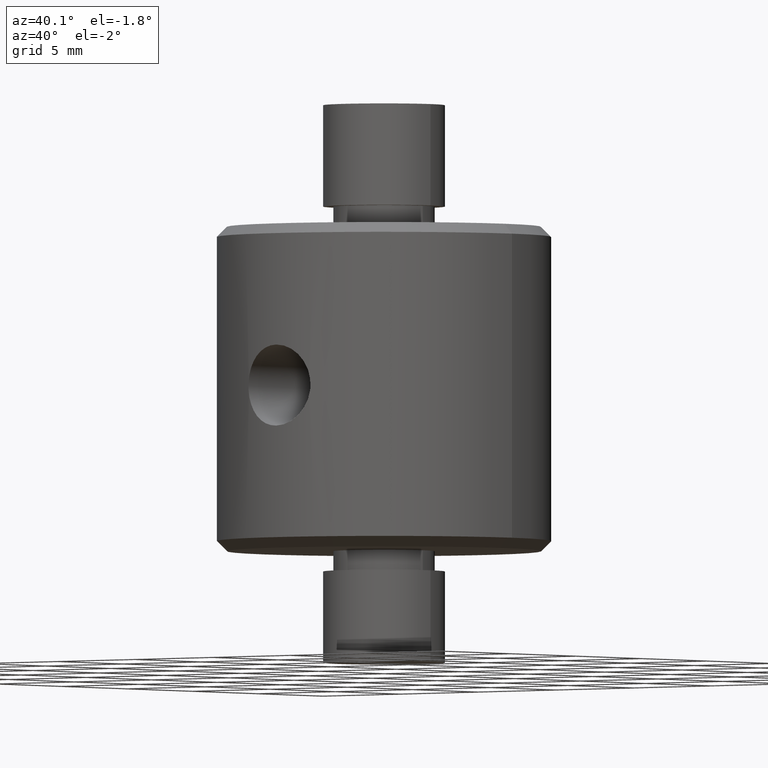
[diagram: clean part render]
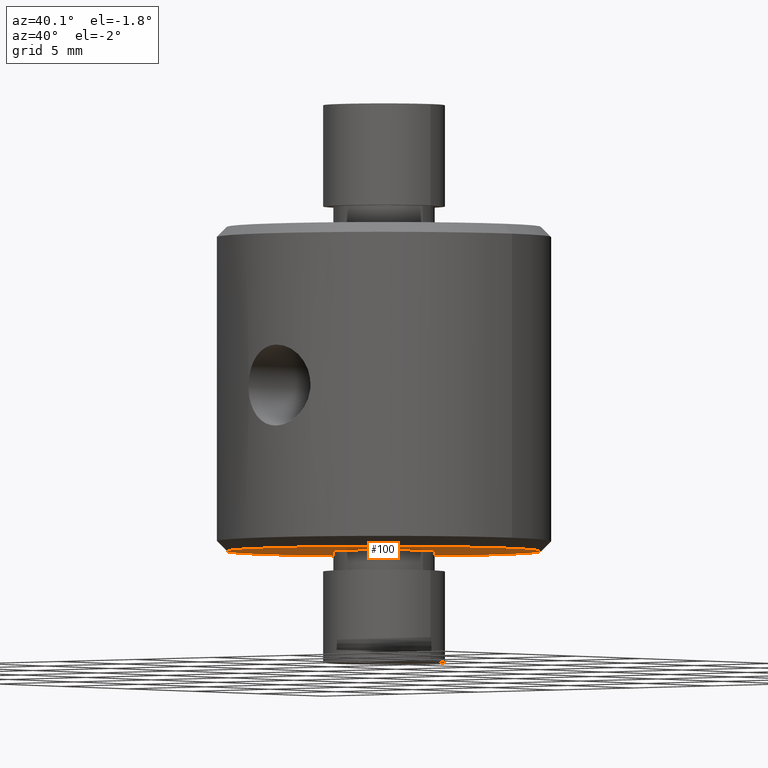
[diagram: same view with one face highlighted and labeled with its STEP entity id]
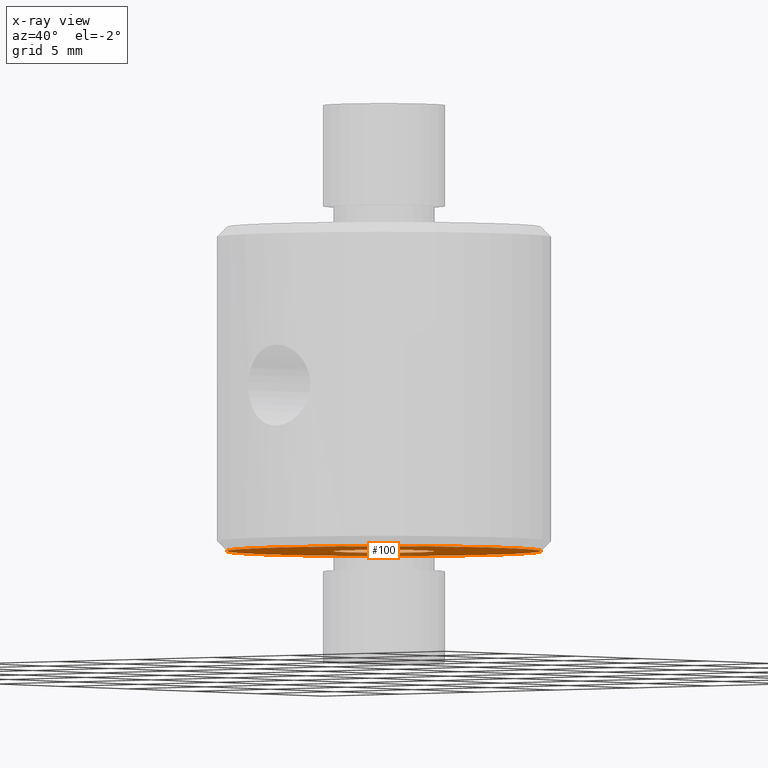
[diagram: x-ray of the same camera — body ghosted, the highlighted face saturated]
A machine part, auxiliary view. The second image highlights one B-rep face of the part: STEP entity #100.
The next image is the same camera in x-ray: the body ghosted, the highlighted face saturated — about 16% of this face is hidden behind the body in this view.
In plain terms, the highlighted planar face has unit normal (0, 0, -1).
Its self-contained STEP definition (entity closure, byte-faithful):
#4 = CIRCLE ( 'NONE', #578, 7.749999999999991100 ) ;
#8 = CARTESIAN_POINT ( 'NONE',  ( -7.749999999999991100, 9.797174393178819700E-016, -8.000000000000000000 ) ) ;
#19 = EDGE_CURVE ( 'NONE', #66, #226, #692, .T. ) ;
#31 = AXIS2_PLACEMENT_3D ( 'NONE', #237, #298, #700 ) ;
#39 = DIRECTION ( 'NONE',  ( 0.0000000000000000000, 0.0000000000000000000, -1.000000000000000000 ) ) ;
#66 = VERTEX_POINT ( 'NONE', #8 ) ;
#97 = FACE_BOUND ( 'NONE', #184, .T. ) ;
#100 = ADVANCED_FACE ( 'NONE', ( #248, #97 ), #277, .T. ) ;
#165 = CARTESIAN_POINT ( 'NONE',  ( 0.0000000000000000000, 0.0000000000000000000, -8.000000000000000000 ) ) ;
#184 = EDGE_LOOP ( 'NONE', ( #297, #748 ) ) ;
#207 = DIRECTION ( 'NONE',  ( 0.0000000000000000000, 0.0000000000000000000, -1.000000000000000000 ) ) ;
#226 = VERTEX_POINT ( 'NONE', #668 ) ;
#237 = CARTESIAN_POINT ( 'NONE',  ( 0.0000000000000000000, 0.0000000000000000000, -8.000000000000000000 ) ) ;
#248 = FACE_OUTER_BOUND ( 'NONE', #661, .T. ) ;
#276 = CARTESIAN_POINT ( 'NONE',  ( 0.0000000000000000000, 0.0000000000000000000, -8.000000000000000000 ) ) ;
#277 = PLANE ( 'NONE',  #31 ) ;
#297 = ORIENTED_EDGE ( 'NONE', *, *, #634, .F. ) ;
#298 = DIRECTION ( 'NONE',  ( 0.0000000000000000000, 0.0000000000000000000, -1.000000000000000000 ) ) ;
#326 = DIRECTION ( 'NONE',  ( -1.000000000000000000, 0.0000000000000000000, 0.0000000000000000000 ) ) ;
#332 = AXIS2_PLACEMENT_3D ( 'NONE', #389, #39, #326 ) ;
#335 = DIRECTION ( 'NONE',  ( -1.000000000000000000, 0.0000000000000000000, 0.0000000000000000000 ) ) ;
#340 = ORIENTED_EDGE ( 'NONE', *, *, #19, .T. ) ;
#359 = VERTEX_POINT ( 'NONE', #376 ) ;
#376 = CARTESIAN_POINT ( 'NONE',  ( -2.500000000000000000, 3.061616997868383100E-016, -8.000000000000000000 ) ) ;
#389 = CARTESIAN_POINT ( 'NONE',  ( 0.0000000000000000000, 0.0000000000000000000, -8.000000000000000000 ) ) ;
#391 = CIRCLE ( 'NONE', #674, 2.500000000000000000 ) ;
#424 = EDGE_CURVE ( 'NONE', #226, #66, #4, .T. ) ;
#443 = DIRECTION ( 'NONE',  ( -1.000000000000000000, 0.0000000000000000000, 0.0000000000000000000 ) ) ;
#462 = AXIS2_PLACEMENT_3D ( 'NONE', #165, #207, #443 ) ;
#529 = CIRCLE ( 'NONE', #462, 2.500000000000000000 ) ;
#557 = DIRECTION ( 'NONE',  ( 0.0000000000000000000, 0.0000000000000000000, -1.000000000000000000 ) ) ;
#560 = DIRECTION ( 'NONE',  ( -1.000000000000000000, 0.0000000000000000000, 0.0000000000000000000 ) ) ;
#578 = AXIS2_PLACEMENT_3D ( 'NONE', #276, #698, #335 ) ;
#634 = EDGE_CURVE ( 'NONE', #635, #359, #391, .T. ) ;
#635 = VERTEX_POINT ( 'NONE', #665 ) ;
#661 = EDGE_LOOP ( 'NONE', ( #694, #340 ) ) ;
#665 = CARTESIAN_POINT ( 'NONE',  ( 2.500000000000000000, 0.0000000000000000000, -8.000000000000000000 ) ) ;
#668 = CARTESIAN_POINT ( 'NONE',  ( 7.749999999999991100, 0.0000000000000000000, -8.000000000000000000 ) ) ;
#674 = AXIS2_PLACEMENT_3D ( 'NONE', #729, #557, #560 ) ;
#676 = EDGE_CURVE ( 'NONE', #359, #635, #529, .T. ) ;
#692 = CIRCLE ( 'NONE', #332, 7.749999999999991100 ) ;
#694 = ORIENTED_EDGE ( 'NONE', *, *, #424, .T. ) ;
#698 = DIRECTION ( 'NONE',  ( 0.0000000000000000000, 0.0000000000000000000, -1.000000000000000000 ) ) ;
#700 = DIRECTION ( 'NONE',  ( -1.000000000000000000, 0.0000000000000000000, -0.0000000000000000000 ) ) ;
#729 = CARTESIAN_POINT ( 'NONE',  ( 0.0000000000000000000, 0.0000000000000000000, -8.000000000000000000 ) ) ;
#748 = ORIENTED_EDGE ( 'NONE', *, *, #676, .F. ) ;